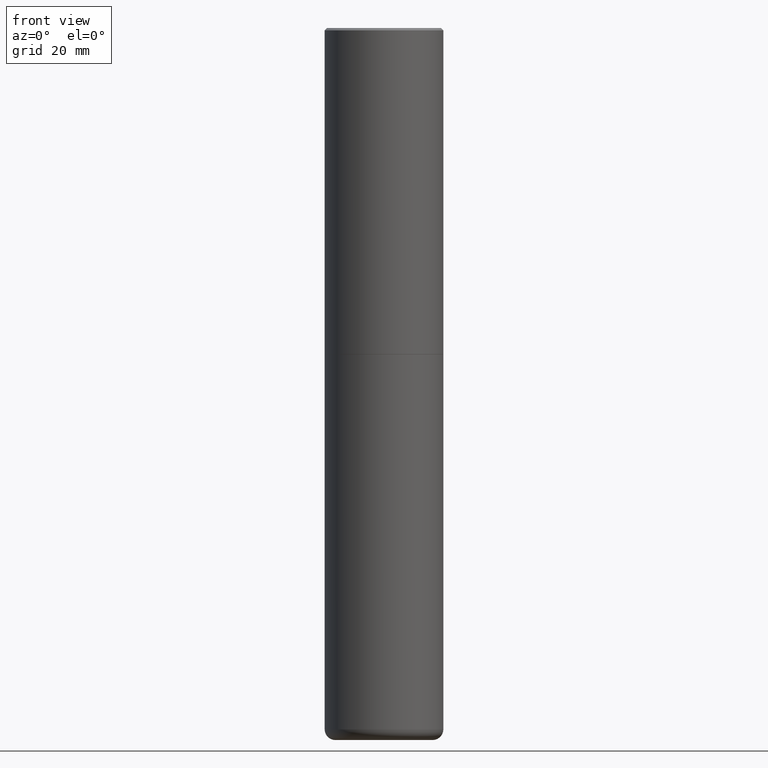
[diagram: clean part render]
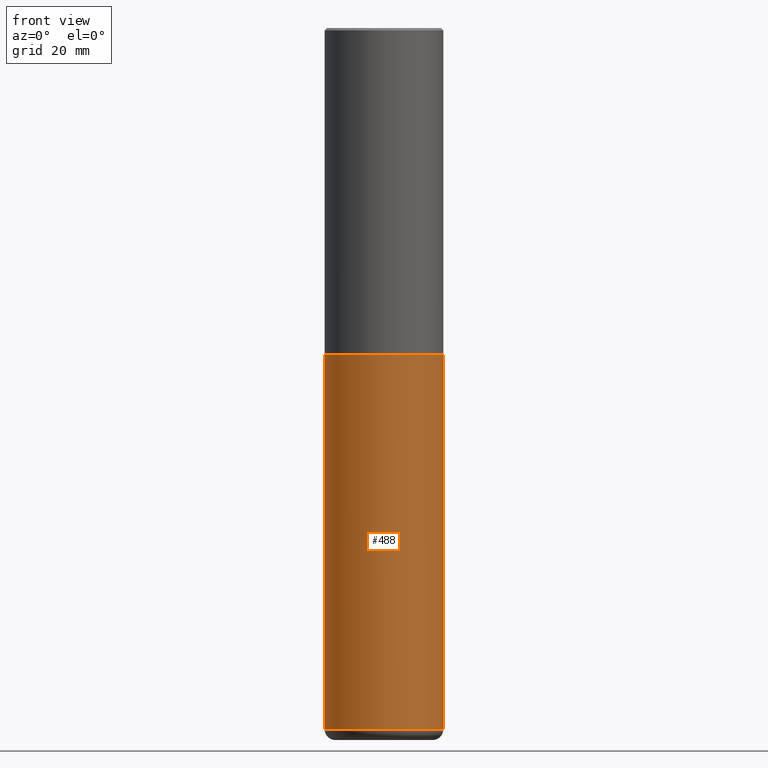
[diagram: same view with one face highlighted and labeled with its STEP entity id]
A machine part, front view. The second image highlights one B-rep face of the part: STEP entity #488.
In plain terms, the highlighted cylindrical surface (partial cylindrical patch) has radius 12.7 mm, axis along (-0, 0, 1).
Its self-contained STEP definition (entity closure, byte-faithful):
#22 = DIRECTION ( 'NONE',  ( 1.000000000000000000, -6.982962677686266711E-15, 4.876176775795935793E-29 ) ) ;
#46 = LINE ( 'NONE', #424, #236 ) ;
#56 = DIRECTION ( 'NONE',  ( -2.445468806185136597E-29, 3.491481338843145583E-15, 1.000000000000000000 ) ) ;
#77 = DIRECTION ( 'NONE',  ( -2.445468806185136597E-29, 3.491481338843145583E-15, 1.000000000000000000 ) ) ;
#80 = DIRECTION ( 'NONE',  ( -2.445468806185136877E-29, 3.491481338843145188E-15, 1.000000000000000000 ) ) ;
#84 = CARTESIAN_POINT ( 'NONE',  ( -0.5000000000000000000, -1.156540650091130805E-14, -2.750000000000000444 ) ) ;
#89 = ORIENTED_EDGE ( 'NONE', *, *, #343, .T. ) ;
#105 = CARTESIAN_POINT ( 'NONE',  ( 0.000000000000000000, 0.000000000000000000, 0.000000000000000000 ) ) ;
#136 = EDGE_CURVE ( 'NONE', #315, #252, #485, .T. ) ;
#137 = VERTEX_POINT ( 'NONE', #373 ) ;
#144 = CIRCLE ( 'NONE', #325, 0.5000000000000000000 ) ;
#177 = AXIS2_PLACEMENT_3D ( 'NONE', #313, #77, #387 ) ;
#194 = ORIENTED_EDGE ( 'NONE', *, *, #350, .T. ) ;
#209 = FACE_OUTER_BOUND ( 'NONE', #389, .T. ) ;
#232 = CARTESIAN_POINT ( 'NONE',  ( -0.5000000000000000000, 3.552713678800500929E-15, -2.459467545127452891E-29 ) ) ;
#236 = VECTOR ( 'NONE', #80, 39.37007874015748143 ) ;
#239 = ORIENTED_EDGE ( 'NONE', *, *, #136, .F. ) ;
#242 = CARTESIAN_POINT ( 'NONE',  ( 6.725039217009125641E-29, -9.601573681818653015E-15, -2.750000000000000444 ) ) ;
#245 = VERTEX_POINT ( 'NONE', #370 ) ;
#252 = VERTEX_POINT ( 'NONE', #84 ) ;
#255 = VECTOR ( 'NONE', #403, 39.37007874015748143 ) ;
#272 = CARTESIAN_POINT ( 'NONE',  ( -0.5000000000000001110, -1.156540650091130647E-14, -5.910003426924223646 ) ) ;
#313 = CARTESIAN_POINT ( 'NONE',  ( 1.445272902499044541E-28, -2.063466667760496652E-14, -5.910003426924223646 ) ) ;
#315 = VERTEX_POINT ( 'NONE', #272 ) ;
#323 = ORIENTED_EDGE ( 'NONE', *, *, #377, .F. ) ;
#325 = AXIS2_PLACEMENT_3D ( 'NONE', #242, #374, #349 ) ;
#343 = EDGE_CURVE ( 'NONE', #315, #245, #435, .T. ) ;
#349 = DIRECTION ( 'NONE',  ( 1.000000000000000000, -6.982962677686266711E-15, 0.000000000000000000 ) ) ;
#350 = EDGE_CURVE ( 'NONE', #245, #137, #46, .T. ) ;
#370 = CARTESIAN_POINT ( 'NONE',  ( 0.5000000000000001110, -2.412614801644810303E-14, -5.910003426924223646 ) ) ;
#373 = CARTESIAN_POINT ( 'NONE',  ( 0.5000000000000000000, -1.309305502066178637E-14, -2.750000000000000444 ) ) ;
#374 = DIRECTION ( 'NONE',  ( -2.445468806185136597E-29, 3.491481338843145583E-15, 1.000000000000000000 ) ) ;
#377 = EDGE_CURVE ( 'NONE', #252, #137, #144, .T. ) ;
#387 = DIRECTION ( 'NONE',  ( 1.000000000000000000, -6.982962677686269077E-15, 0.000000000000000000 ) ) ;
#389 = EDGE_LOOP ( 'NONE', ( #239, #89, #194, #323 ) ) ;
#394 = CYLINDRICAL_SURFACE ( 'NONE', #473, 0.5000000000000000000 ) ;
#403 = DIRECTION ( 'NONE',  ( -2.445468806185136877E-29, 3.491481338843145188E-15, 1.000000000000000000 ) ) ;
#424 = CARTESIAN_POINT ( 'NONE',  ( 0.5000000000000000000, -3.491481338843133355E-15, 2.438088387897967896E-29 ) ) ;
#435 = CIRCLE ( 'NONE', #177, 0.5000000000000001110 ) ;
#473 = AXIS2_PLACEMENT_3D ( 'NONE', #105, #56, #22 ) ;
#485 = LINE ( 'NONE', #232, #255 ) ;
#488 = ADVANCED_FACE ( 'NONE', ( #209 ), #394, .T. ) ;